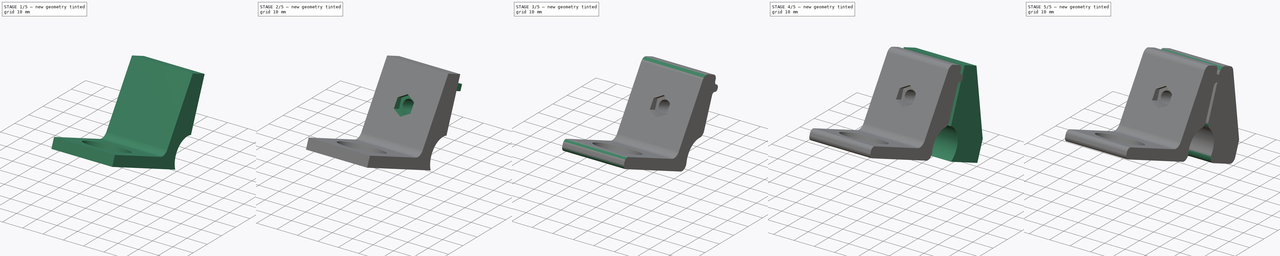
[diagram: build sequence overview — one tinted view per stage of 5, left to right]
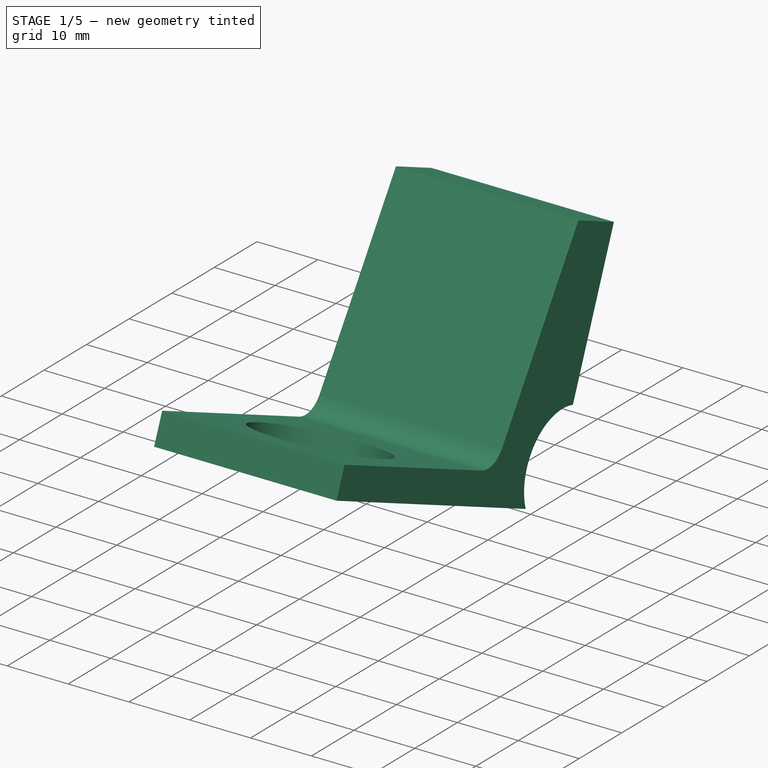
[diagram: stage 1 of 5 — iso view after this stage's code; geometry added in this stage tinted green]
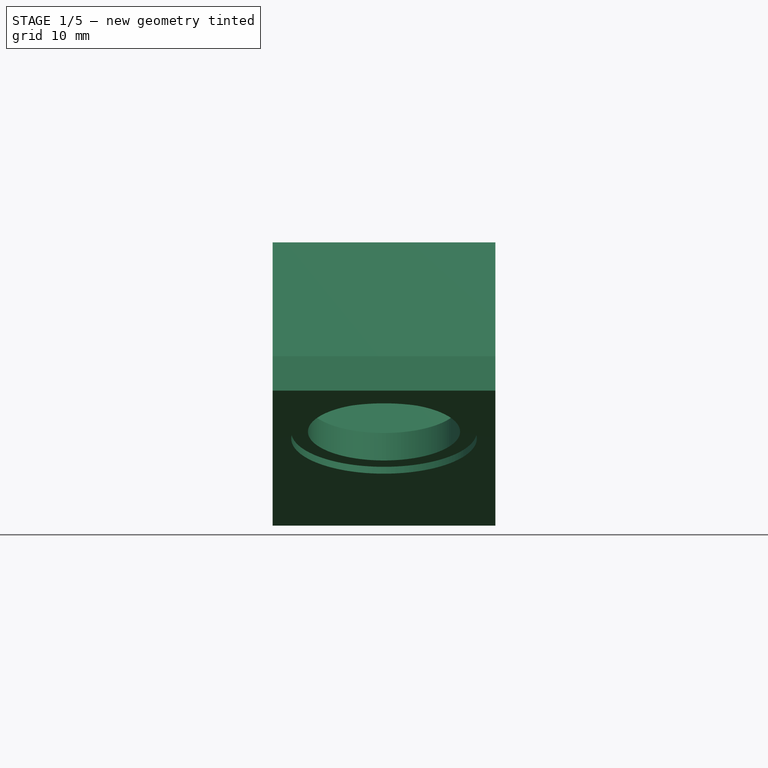
[diagram: stage 1 of 5 — front view after this stage's code; geometry added in this stage tinted green]
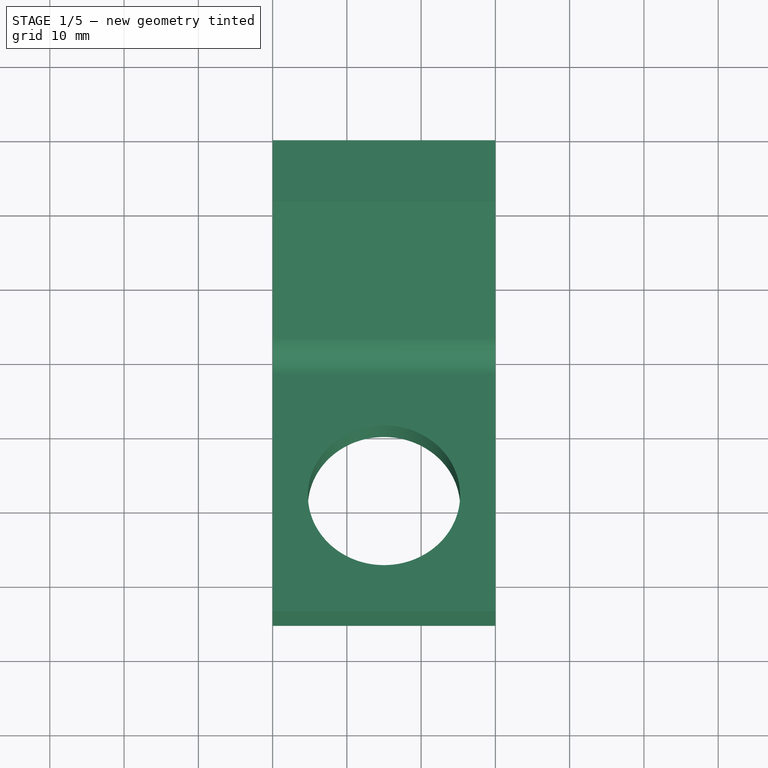
[diagram: stage 1 of 5 — top view after this stage's code; geometry added in this stage tinted green]
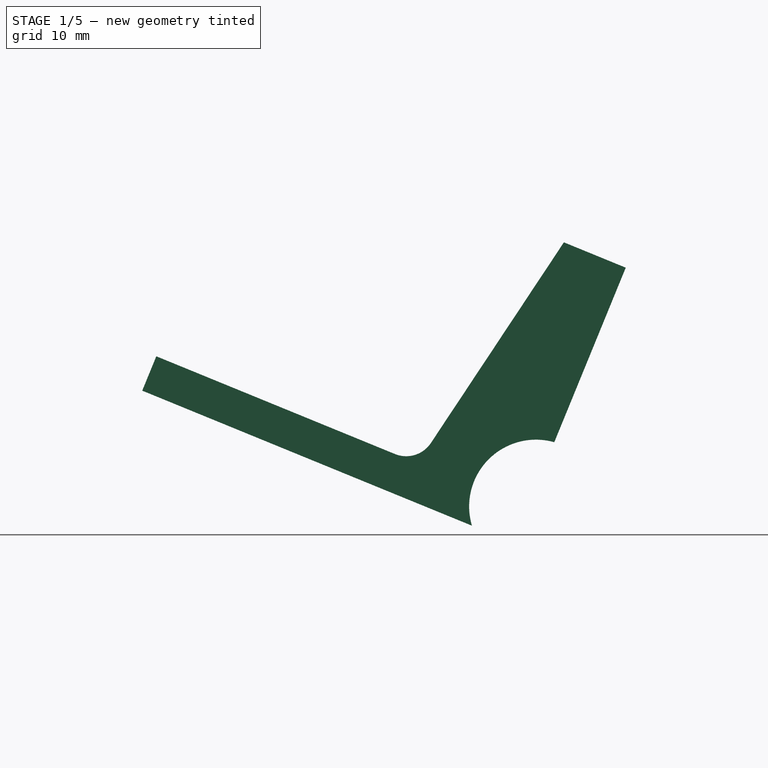
[diagram: stage 1 of 5 — right view after this stage's code; geometry added in this stage tinted green]
FCSTD DOCUMENT  (FreeCAD 0.18R16117 (Git))
Label: rim_to_rod_adapter
License: All rights reserved
LicenseURL: http://en.wikipedia.org/wiki/All_rights_reserved
objects: Sketcher::SketchObject×8, PartDesign::Fillet×5, PartDesign::Pad×3, PartDesign::Hole×3, PartDesign::Plane×3, PartDesign::Pocket×3, PartDesign::Body×2, PartDesign::Chamfer×1, App::Part×1
note: 37 computed .brp shape members not serialized (recipe doc carries the construction recipe); baked Part::Feature solids carry a one-line shape summary decoded from their .brp

FEATURE [Sketcher::SketchObject] Sketch
  MapMode = 5
  Placement = pos=(0,0,0) rot=(0.57735,0.57735,0.57735;2.0944rad)
  Support = -> [YZ_Plane001]
  sketch-geometry (27):
    g0: GeomPoint X=-450 Y=0 Z=0
    g1: ArcOfParabola [constr] CenterX=0 CenterY=0 CenterZ=0 NormalX=0 NormalY=0 NormalZ=1 Focal=450 AngleXU=-3.14159 StartAngle=-600 EndAngle=0
    g2: GeomPoint X=-450 Y=0 Z=0
    g3: LineSegment [constr] StartX=0 StartY=0 StartZ=0 EndX=-450 EndY=0 EndZ=0
    g4: Circle [constr] CenterX=-192.512 CenterY=604.992 CenterZ=0 NormalX=0 NormalY=0 NormalZ=1 AngleXU=0 Radius=9
    g5: GeomPoint X=-200 Y=600 Z=0
    g6: ArcOfParabola [constr] CenterX=2 CenterY=0 CenterZ=0 NormalX=0 NormalY=0 NormalZ=1 Focal=450 AngleXU=-3.14159 StartAngle=-596.588 EndAngle=0
    g7: GeomPoint X=-448 Y=0 Z=0
    g8: LineSegment [constr] StartX=2 StartY=0 StartZ=0 EndX=-448 EndY=0 EndZ=0
    g9: LineSegment [constr] StartX=0 StartY=0 StartZ=0 EndX=2 EndY=0 EndZ=0
    g10: GeomPoint X=-195.732 Y=596.588 Z=0
    g11: GeomPoint X=-195.732 Y=596.588 Z=0
    g12: ArcOfCircle [constr] CenterX=-192.512 CenterY=604.992 CenterZ=0 NormalX=0 NormalY=0 NormalZ=1 AngleXU=0 Radius=9 StartAngle=4.34646 EndAngle=10.0128
    g13: LineSegment [constr] StartX=-450 StartY=0 StartZ=0 EndX=-200.84 EndY=608.403 EndZ=0
    g14: LineSegment StartX=-201.133 StartY=602.41 StartZ=0 EndX=-245.528 EndY=620.591 EndZ=0
    g15: LineSegment [constr] StartX=-188.178 StartY=597.105 StartZ=0 EndX=-174.296 EndY=591.42 EndZ=0
    g16: LineSegment StartX=-245.528 StartY=620.591 StartZ=0 EndX=-243.633 EndY=625.218 EndZ=0
    g17: LineSegment [constr] StartX=-188.75 StartY=640.563 StartZ=0 EndX=-170.242 EndY=632.984 EndZ=0
    g18: LineSegment [constr] StartX=-170.242 StartY=632.984 StartZ=0 EndX=-172.402 EndY=596.047 EndZ=0
    g19: LineSegment [constr] StartX=-172.402 StartY=596.047 StartZ=0 EndX=-174.296 EndY=591.42 EndZ=0
    g20: LineSegment [constr] StartX=-188.75 StartY=640.563 StartZ=0 EndX=-203.909 EndY=603.547 EndZ=0
    g21: LineSegment [constr] StartX=-192.512 StartY=604.992 StartZ=0 EndX=-179.496 EndY=636.774 EndZ=0
    g22: LineSegment StartX=-180.422 StartY=637.153 StartZ=0 EndX=-190.047 EndY=613.648 EndZ=0
    g23: LineSegment StartX=-188.75 StartY=640.563 StartZ=0 EndX=-180.422 EndY=637.153 EndZ=0
    g24: ArcOfCircle CenterX=-192.512 CenterY=604.992 CenterZ=0 NormalX=0 NormalY=0 NormalZ=1 AngleXU=0 Radius=9 StartAngle=1.29344 EndAngle=3.43257
    g25: LineSegment StartX=-188.75 StartY=640.563 StartZ=0 EndX=-208.467 EndY=610.817 EndZ=0
    g26: LineSegment StartX=-243.633 StartY=625.218 StartZ=0 EndX=-208.467 EndY=610.817 EndZ=0
  constraints (70):
    c: PointOnObject(g0,g-1)
    c: InternalAlignment(g2,g1)
    c: Coincident(g2,g3)
    c: Coincident(g1,g3)
    c: Coincident(g2,g0)
    c: Coincident(g1,g-1)
    c: DistanceX(g0,g1) = 450
    c: DistanceY(g1,g1) = 600
    c: Horizontal(g1,g1)
    c: PointOnObject(g5,g4)
    c: Tangent(g1,g4,g5) = -1.5708
    c: Coincident(g5,g1)
    c: Diameter(g4) = 18  'rim_dia'
    c: PointOnObject(g6,g-1)
    c: InternalAlignment(g7,g6)
    c: Coincident(g7,g8)
    c: Coincident(g6,g8)
    c: PointOnObject(g7,g3)
    c: DistanceX(g1,g6) = 2  'thickness'
    c: DistanceX(g0,g7) = 2
    c: Horizontal(g6,g6)
    c: Coincident(g9,g1)
    c: Coincident(g9,g6)
    c: Coincident(g10,g11)
    c: Coincident(g10,g6)
    c: Coincident(g12,g4)
    c: Coincident(g12,g1)
    c: Coincident(g12,g6)
    c: DistanceX(g1,g1) = 200
    c: Distance(g1,g0) = 650
    c: Tangent(g13,g12)
    c: Coincident(g13,g0)
    c: Perpendicular(g13,g14)
    c: PointOnObject(g14,g4)
    c: Tangent(g15,g14)
    c: Perpendicular(g15,g19)
    c: Perpendicular(g14,g16)
    c: Equal(g19,g16)
    c: Coincident(g19,g18)
    c: Coincident(g18,g17)
    c: Coincident(g16,g14)
    c: Distance(g16) = 5
    c: Distance(g15,g14) = 14
    c: Coincident(g19,g15)
    c: Parallel(g17,g14)
    c: PointOnObject(g20,g14)
    c: Perpendicular(g14,g20)
    c: Distance(g20) = 40
    c: Distance(g17) = 20
    c: Perpendicular(g14,g21)
    c: Symmetric(g17,g17,g21)
    c: Distance(g15) = 15
    c: PointOnObject(g13,g4)
    c: PointOnObject(g15,g4)
    c: PointOnObject(g22,g17)
    c: Coincident(g23,g22)
    c: Perpendicular(g14,g22)
    c: Coincident(g24,g14)
    c: Coincident(g24,g4)
    c: Coincident(g24,g22)
    c: Coincident(g25,g26)
    c: Coincident(g23,g25)
    c: Coincident(g23,g17)
    c: Parallel(g26,g14)
    c: Coincident(g16,g26)
    c: Distance(g26) = 38
    c: Distance(g21,g22) = 1
    c: Distance(g25,g13) = 8
    c: Coincident(g21,g24)
    c: Coincident(g20,g23)
FEATURE [PartDesign::Pad] Pad
  Length = 30
  Length2 = 100
  Placement = pos=(0,0,0) rot=(0.57735,0.57735,0.57735;2.0944rad)
  Profile = -> Sketch
  Type = 0
FEATURE [PartDesign::Fillet] Fillet
  Base = -> Pad [Edge17]
  BaseFeature = -> Pad
  Placement = pos=(0,0,0) rot=(0.57735,0.57735,0.57735;2.0944rad)
  Radius = 4
FEATURE [PartDesign::Hole] Hole
  BaseFeature = -> Fillet
  Depth = 25
  DepthType = 1
  Diameter = 20.5
  DrillPoint = 1
  DrillPointAngle = 118
  HoleCutCountersinkAngle = 90
  HoleCutDepth = 1
  HoleCutDiameter = 25
  HoleCutType = 1
  ModelActualThread = false
  Placement = pos=(0,0,0) rot=(0.57735,0.57735,0.57735;2.0944rad)
  Profile = -> Sketch001
  Tapered = false
  TaperedAngle = 90
  ThreadAngle = 0
  ThreadClass = 0
  ThreadCutOffInner = 0
  ThreadCutOffOuter = 0
  ThreadDirection = 0
  ThreadFit = 0
  ThreadPitch = 0
  ThreadSize = 0
  ThreadType = 0
  Threaded = false
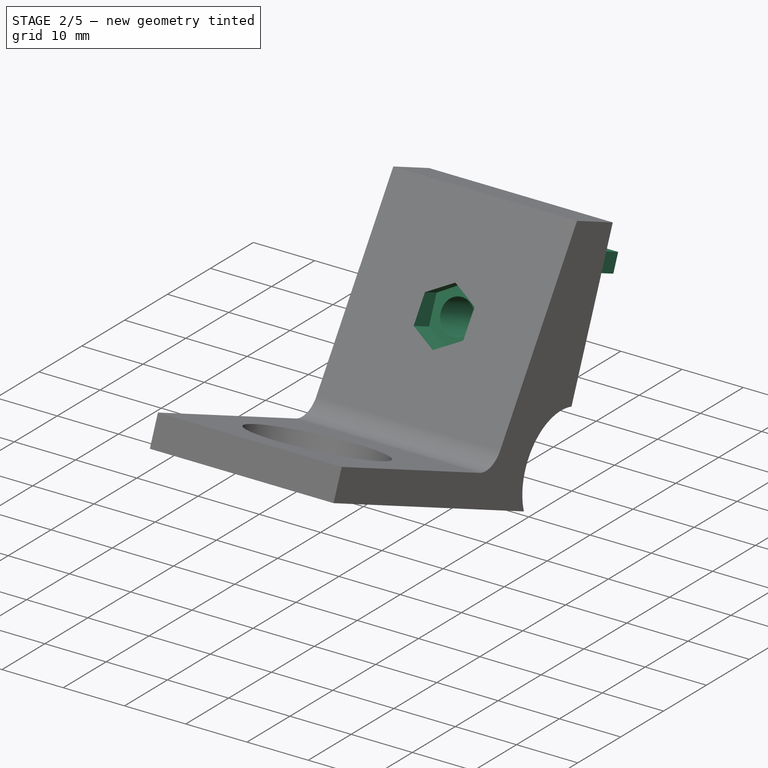
[diagram: stage 2 of 5 — iso view after this stage's code; geometry added in this stage tinted green]
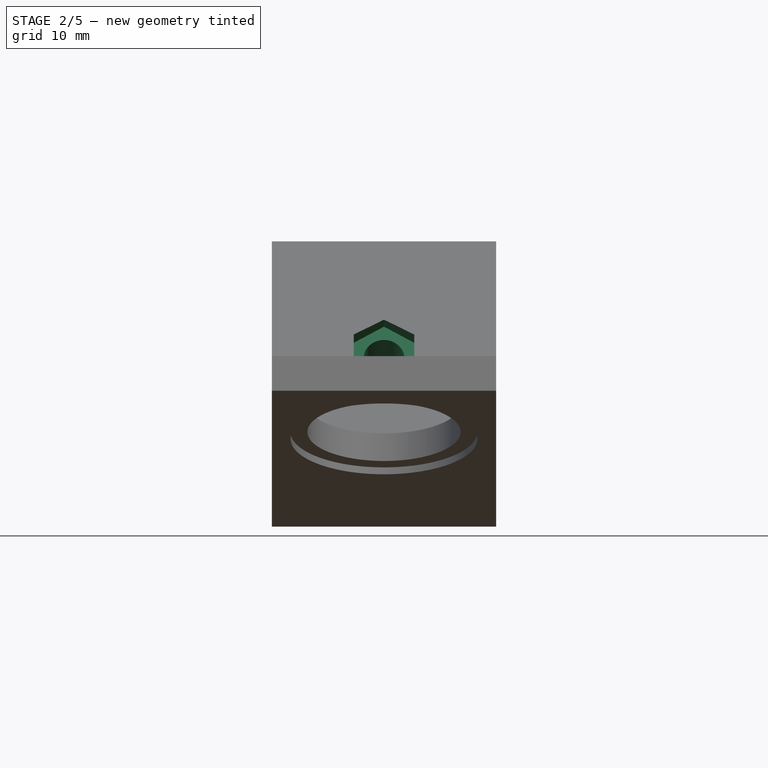
[diagram: stage 2 of 5 — front view after this stage's code; geometry added in this stage tinted green]
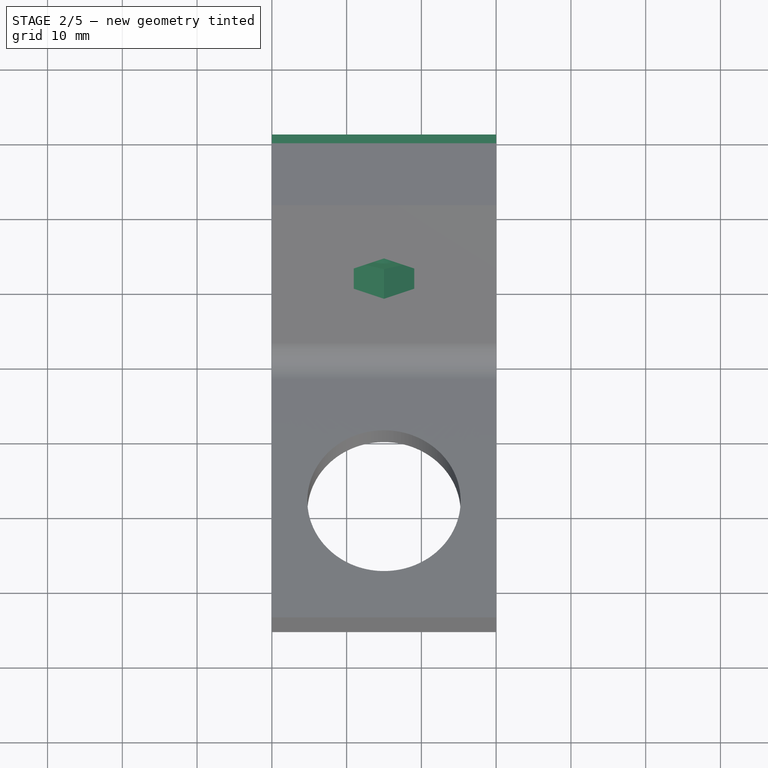
[diagram: stage 2 of 5 — top view after this stage's code; geometry added in this stage tinted green]
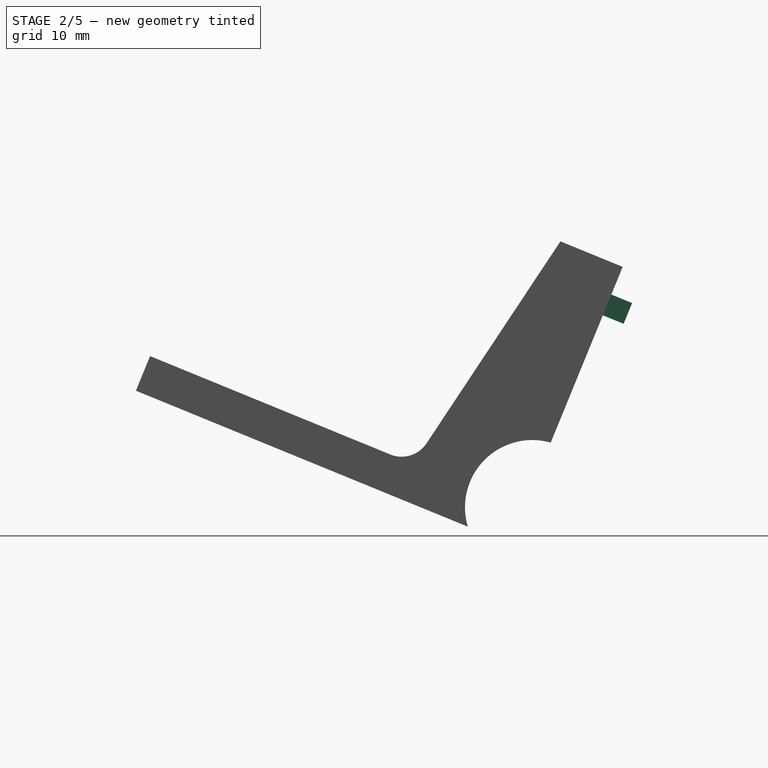
[diagram: stage 2 of 5 — right view after this stage's code; geometry added in this stage tinted green]
FEATURE [PartDesign::Plane] DatumPlane
  AttachmentOffset = pos=(0,0,6) rot=(0,0,1;0rad)
  Length = 731.398
  MapMode = 5
  Placement = pos=(-2.756e-13,-372.412,152.514) rot=(0.638831,0.638831,0.428706;3.9516rad)
  ResizeMode = 0
  Support = -> [Hole]
  Width = 73.4181
FEATURE [Sketcher::SketchObject] Sketch003
  ExternalGeometry = -> [Hole]
  MapMode = 5
  Placement = pos=(-2.796e-13,-377.965,154.788) rot=(0.638831,0.638831,0.428706;3.9516rad)
  Support = -> [Hole]
  sketch-geometry (3):
    g0: Circle CenterX=504.247 CenterY=15 CenterZ=0 NormalX=0 NormalY=0 NormalZ=1 AngleXU=0 Radius=3.36332
    g1: GeomPoint X=495.848 Y=15 Z=0
    g2: LineSegment [constr] StartX=495.848 StartY=15 StartZ=0 EndX=504.247 EndY=15 EndZ=0
  constraints (5):
    c: Symmetric(g-6,g-6,g1)
    c: Coincident(g2,g1)
    c: Coincident(g2,g0)
    c: Perpendicular(g-6,g2)
    c: Distance(g0,g-3) = 17  'screw_dist_from_outer_edge'
FEATURE [PartDesign::Hole] Hole001
  BaseFeature = -> Hole
  Depth = 25
  DepthType = 1
  Diameter = 5.5
  DrillPoint = 1
  DrillPointAngle = 118
  HoleCutCountersinkAngle = 90
  HoleCutDepth = 0
  HoleCutDiameter = 5
  HoleCutType = 0
  ModelActualThread = false
  Placement = pos=(0,0,0) rot=(0.57735,0.57735,0.57735;2.0944rad)
  Profile = -> Sketch003
  Tapered = false
  TaperedAngle = 90
  ThreadAngle = 60
  ThreadClass = 0
  ThreadCutOffInner = 0.0866025
  ThreadCutOffOuter = 0.173205
  ThreadDirection = 0
  ThreadFit = 0
  ThreadPitch = 0.8
  ThreadSize = 6
  ThreadType = 1
  Threaded = false
FEATURE [PartDesign::Plane] DatumPlane002
  AttachmentOffset = pos=(0,0,-9) rot=(0,0,1;0rad)
  Length = 731.398
  MapMode = 11
  Placement = pos=(15,-195.193,624.832) rot=(0.638831,0.638831,0.428706;3.9516rad)
  ResizeMode = 0
  Support = -> [Hole001]
  Width = 73.4181
FEATURE [Sketcher::SketchObject] Sketch005
  MapMode = 5
  Placement = pos=(15,-195.193,624.832) rot=(0.638831,0.638831,0.428706;3.9516rad)
  Support = -> [DatumPlane002]
  sketch-geometry (7):
    g0: LineSegment StartX=2.33827 StartY=-4.05 StartZ=0 EndX=4.67654 EndY=1.99458e-11 EndZ=0
    g1: LineSegment StartX=4.67654 StartY=1.99458e-11 StartZ=0 EndX=2.33827 EndY=4.05 EndZ=0
    g2: LineSegment StartX=2.33827 StartY=4.05 StartZ=0 EndX=-2.33827 EndY=4.05 EndZ=0
    g3: LineSegment StartX=-2.33827 StartY=4.05 StartZ=0 EndX=-4.67654 EndY=1.74598e-11 EndZ=0
    g4: LineSegment StartX=-4.67654 StartY=1.74598e-11 StartZ=0 EndX=-2.33827 EndY=-4.05 EndZ=0
    g5: LineSegment StartX=-2.33827 StartY=-4.05 StartZ=0 EndX=2.33827 EndY=-4.05 EndZ=0
    g6: Circle [constr] CenterX=0 CenterY=0 CenterZ=0 NormalX=0 NormalY=0 NormalZ=1 AngleXU=0 Radius=4.67654
  constraints (16):
    c: Coincident(g0,g1)
    c: Coincident(g1,g2)
    c: Coincident(g2,g3)
    c: Coincident(g3,g4)
    c: Coincident(g4,g5)
    c: Coincident(g5,g0)
    c: Equal(g0, g1-g5) x5
    c: PointOnObject(g0,g6)
    c: PointOnObject(g1,g6)
    c: PointOnObject(g2,g6)
    c: PointOnObject(g3,g6)
    c: PointOnObject(g4,g6)
    c: PointOnObject(g5,g6)
    c: Coincident(g6,g-1)
    c: Horizontal(g2)
    c: Distance(g2,g4) = 8.1
FEATURE [PartDesign::Pocket] Pocket001
  BaseFeature = -> Hole001
  Length = 5
  Length2 = 100
  Placement = pos=(0,0,0) rot=(0.57735,0.57735,0.57735;2.0944rad)
  Profile = -> Sketch005
  Type = 0
FEATURE [Sketcher::SketchObject] Sketch006
  ExternalGeometry = -> [Pocket001]
  MapMode = 5
  Placement = pos=(-3.827e-13,-377.965,154.788) rot=(0.638831,0.638831,0.428706;3.9516rad)
  Support = -> [Pocket001]
  sketch-geometry (5):
    g0: LineSegment StartX=517.247 StartY=30 StartZ=0 EndX=517.247 EndY=-7.034e-13 EndZ=0
    g1: LineSegment StartX=517.247 StartY=-7.034e-13 StartZ=0 EndX=514.247 EndY=-7.034e-13 EndZ=0
    g2: LineSegment StartX=514.247 StartY=-7.034e-13 StartZ=0 EndX=514.247 EndY=30 EndZ=0
    g3: LineSegment StartX=514.247 StartY=30 StartZ=0 EndX=517.247 EndY=30 EndZ=0
    g4: LineSegment StartX=517.247 StartY=30 StartZ=0 EndX=517.247 EndY=-7.034e-13 EndZ=0
  constraints (10):
    c: Coincident(g1,g2)
    c: Coincident(g2,g3)
    c: Coincident(g3,g4)
    c: Coincident(g4,g1)
    c: Horizontal(g1)
    c: Horizontal(g3)
    c: Vertical(g2)
    c: Coincident(g1,g0)
    c: Coincident(g0,g3)
    c: DistanceX(g3,g3) = 3
FEATURE [PartDesign::Pad] Pad002
  BaseFeature = -> Pocket001
  Length = 3
  Length2 = 100
  Placement = pos=(0,0,0) rot=(0.57735,0.57735,0.57735;2.0944rad)
  Profile = -> Sketch006
  Type = 0
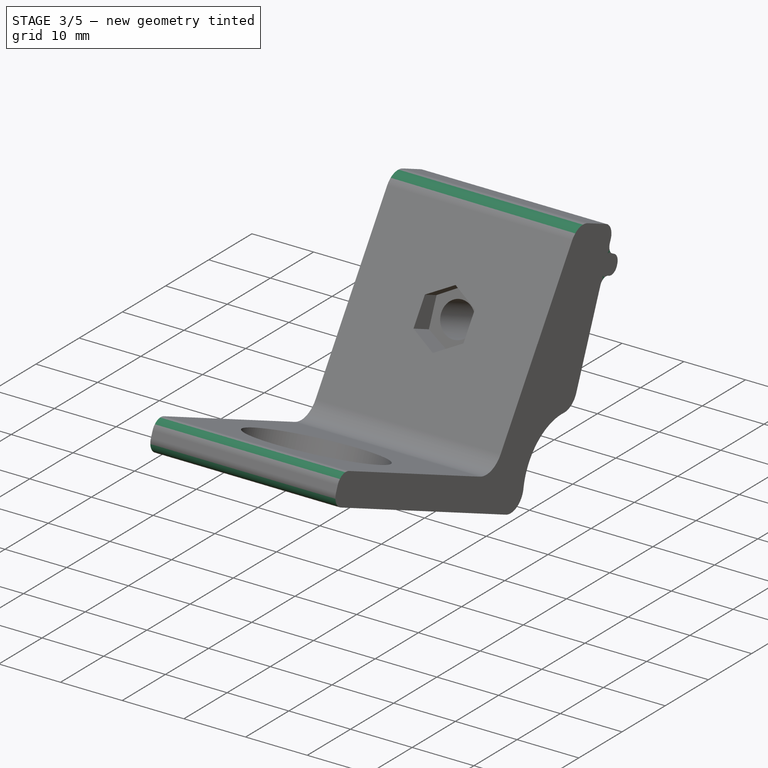
[diagram: stage 3 of 5 — iso view after this stage's code; geometry added in this stage tinted green]
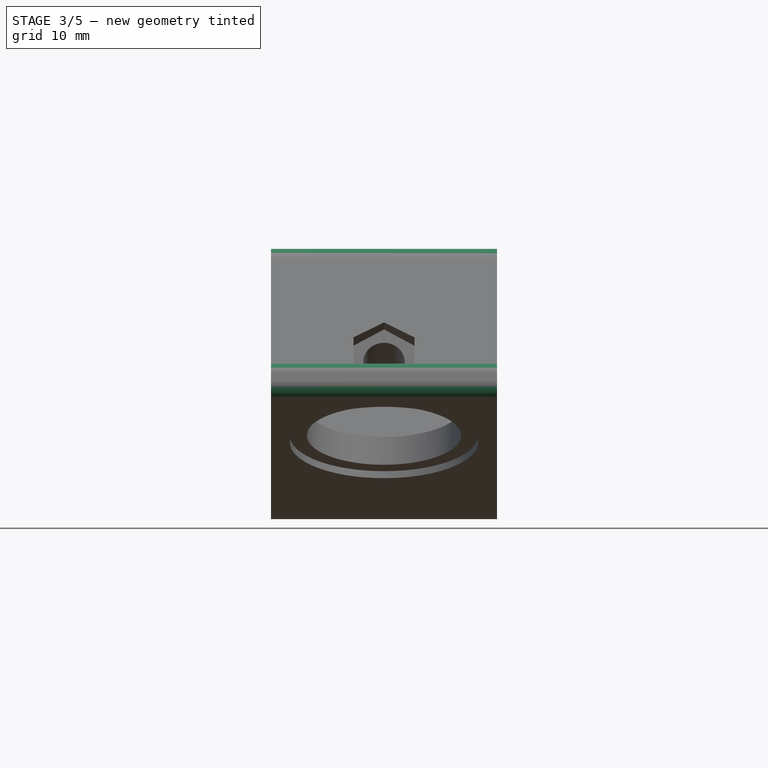
[diagram: stage 3 of 5 — front view after this stage's code; geometry added in this stage tinted green]
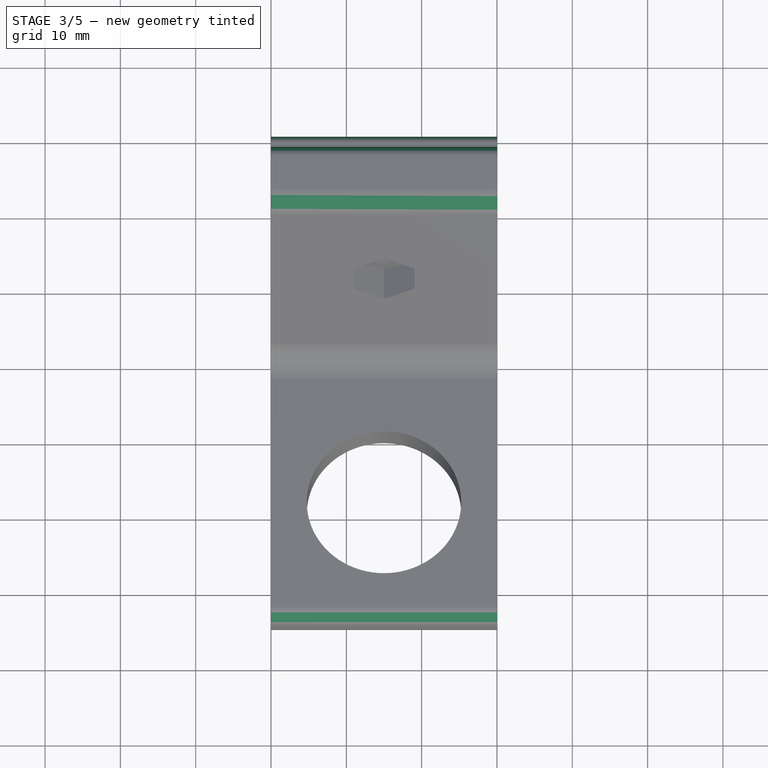
[diagram: stage 3 of 5 — top view after this stage's code; geometry added in this stage tinted green]
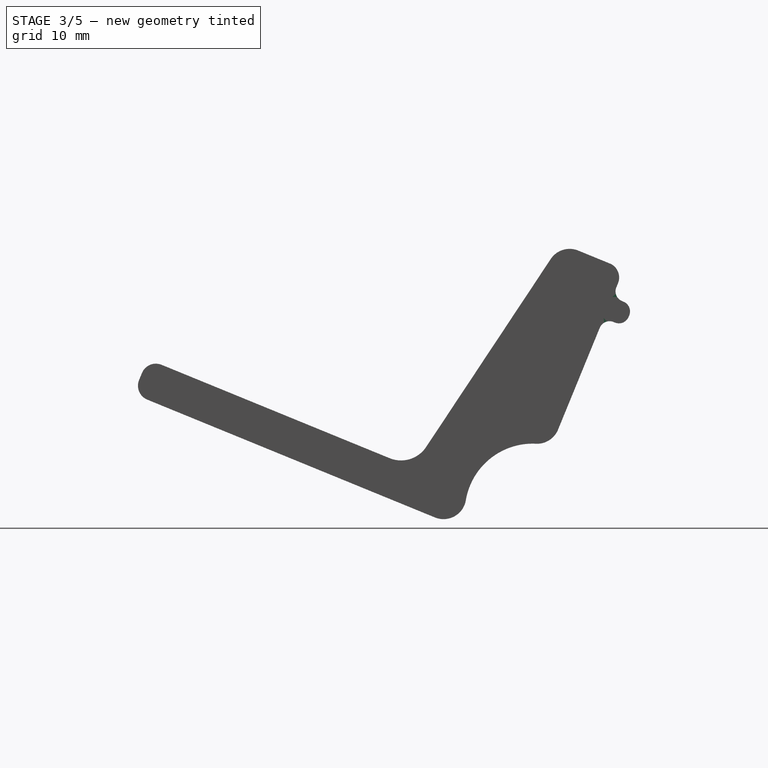
[diagram: stage 3 of 5 — right view after this stage's code; geometry added in this stage tinted green]
FEATURE [PartDesign::Fillet] Fillet002
  Base = -> Pad002 [Edge43,Edge63,Edge62,Edge39]
  BaseFeature = -> Pad002
  Placement = pos=(0,0,0) rot=(0.57735,0.57735,0.57735;2.0944rad)
  Radius = 1.4
FEATURE [PartDesign::Body] Body001
  Group = -> [Pad001,DatumPlane001,Sketch004,Hole002,Pocket,Sketch007,Pocket002,Chamfer,Fillet003]
  Origin = -> Origin002
  Tip = -> Fillet003
FEATURE [PartDesign::Fillet] Fillet004
  Base = -> Fillet002 [Edge36,Edge42,Edge23]
  BaseFeature = -> Fillet002
  Placement = pos=(0,0,0) rot=(0.57735,0.57735,0.57735;2.0944rad)
  Radius = 3
FEATURE [PartDesign::Fillet] Fillet005
  Base = -> Fillet004 [Edge40,Edge43,Edge17]
  BaseFeature = -> Fillet004
  Placement = pos=(0,0,0) rot=(0.57735,0.57735,0.57735;2.0944rad)
  Radius = 2
FEATURE [PartDesign::Body] Body  label="DishWithRim"
  Group = -> [Sketch,Pad,Fillet,Sketch001,Sketch002,Hole,DatumPlane,Sketch003,Hole001,DatumPlane002,Sketch005,Pocket001,Sketch006,Pad002,Fillet002,Fillet004,Fillet005]
  Origin = -> Origin001
  Tip = -> Fillet005
FEATURE [App::Part] Part
  Group = -> [Body,Body001]
  Origin = -> Origin
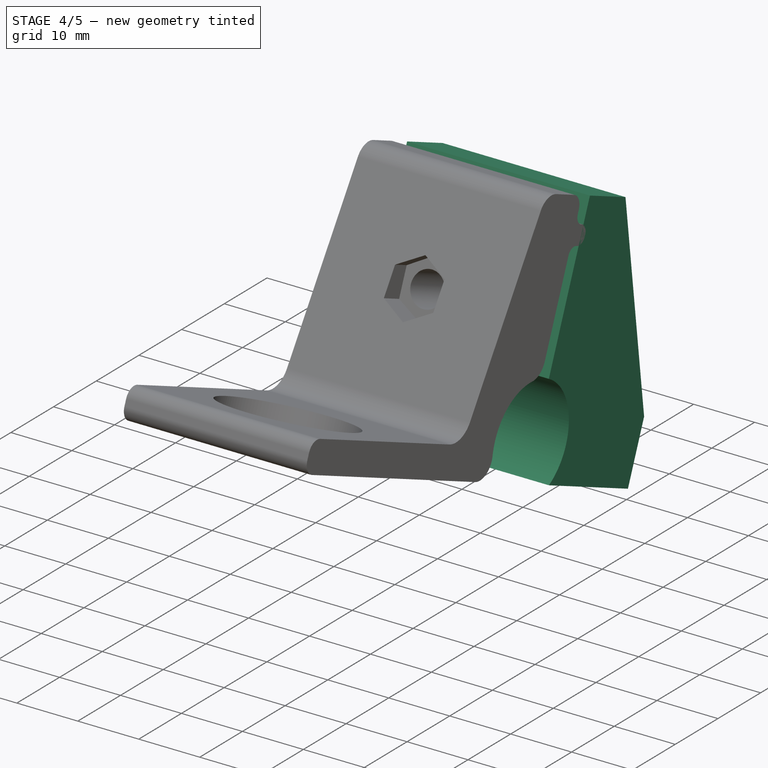
[diagram: stage 4 of 5 — iso view after this stage's code; geometry added in this stage tinted green]
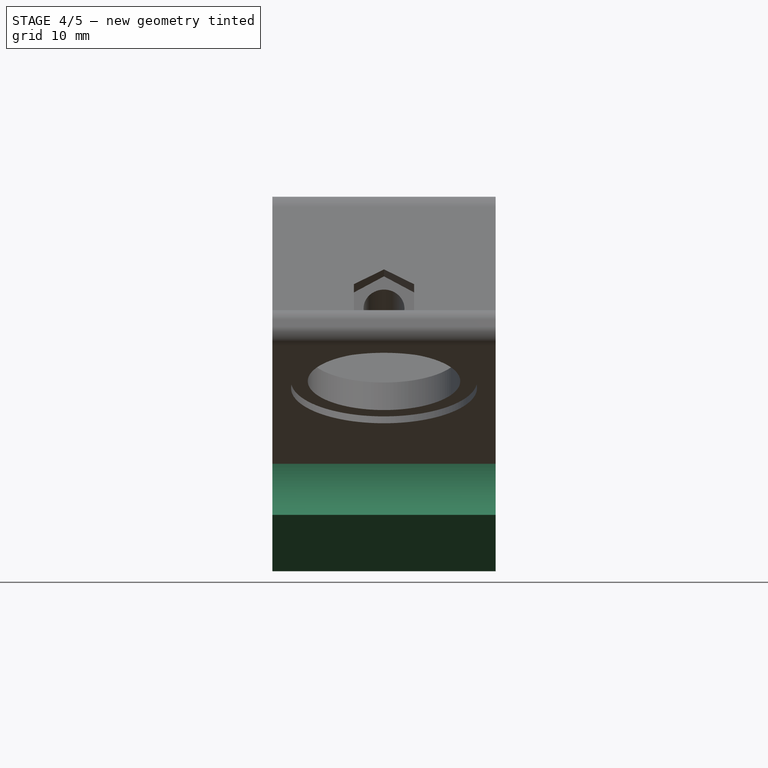
[diagram: stage 4 of 5 — front view after this stage's code; geometry added in this stage tinted green]
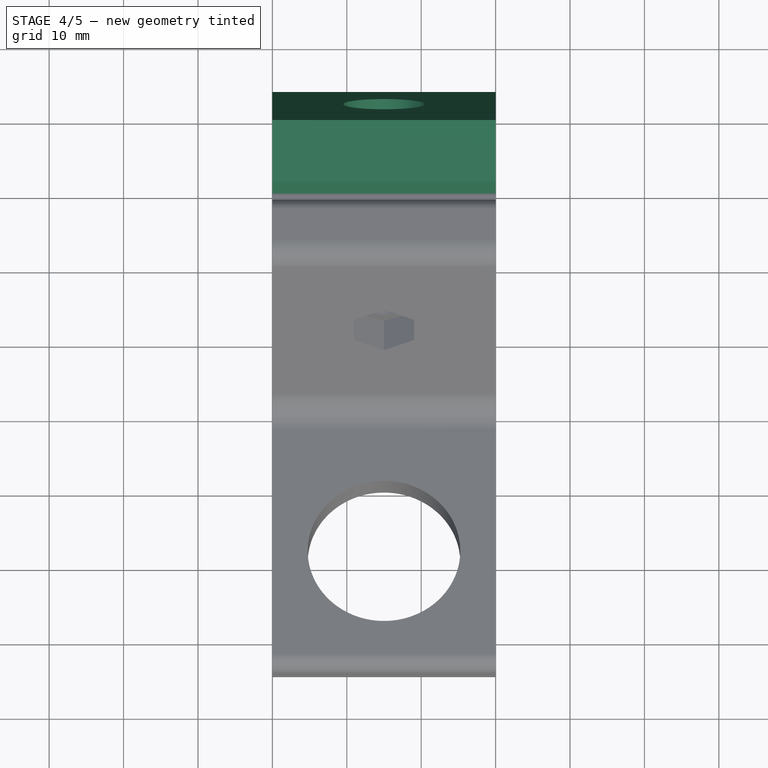
[diagram: stage 4 of 5 — top view after this stage's code; geometry added in this stage tinted green]
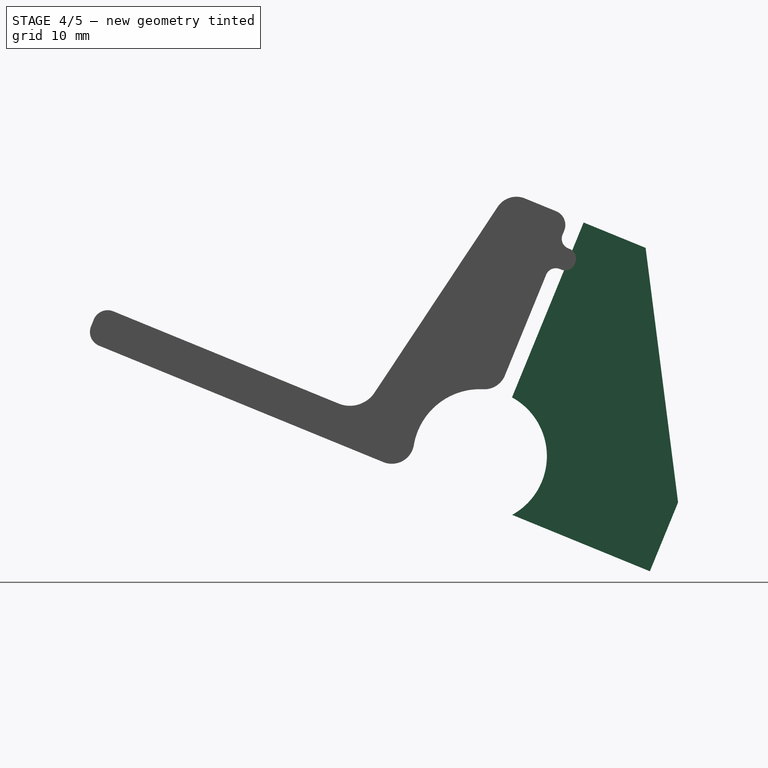
[diagram: stage 4 of 5 — right view after this stage's code; geometry added in this stage tinted green]
FEATURE [Sketcher::SketchObject] Sketch001
  ExternalGeometry = -> [Fillet]
  MapMode = 5
  Placement = pos=(-9.21e-14,182.384,445.348) rot=(0.700356,0.700356,-0.137853;2.86761rad)
  Support = -> [Fillet]
  sketch-geometry (3):
    g0: Circle CenterX=-445.405 CenterY=15 CenterZ=0 NormalX=0 NormalY=0 NormalZ=1 AngleXU=0 Radius=2.9091
    g1: GeomPoint X=-462.405 Y=15 Z=0
    g2: LineSegment [constr] StartX=-462.405 StartY=15 StartZ=0 EndX=-445.405 EndY=15 EndZ=0
  constraints (5):
    c: Symmetric(g-3,g-3,g1)
    c: Perpendicular(g-3,g2)
    c: Coincident(g0,g2)
    c: Coincident(g2,g1)
    c: Distance(g2) = 17
FEATURE [Sketcher::SketchObject] Sketch002
  ExternalGeometry = -> [Sketch]
  MapMode = 5
  Placement = pos=(0,0,0) rot=(0.57735,0.57735,0.57735;2.0944rad)
  Support = -> [YZ_Plane001]
  sketch-geometry (12):
    g0: LineSegment [constr] StartX=-192.512 StartY=604.992 StartZ=0 EndX=-179.496 EndY=636.774 EndZ=0
    g1: LineSegment StartX=-188.196 StartY=612.89 StartZ=0 EndX=-178.571 EndY=636.395 EndZ=0
    g2: Circle [constr] CenterX=-192.512 CenterY=604.992 CenterZ=0 NormalX=0 NormalY=0 NormalZ=1 AngleXU=0 Radius=9
    g3: GeomPoint X=-179.496 Y=636.774 Z=0
    g4: LineSegment [constr] StartX=-179.496 StartY=636.774 StartZ=0 EndX=-178.571 EndY=636.395 EndZ=0
    g5: ArcOfCircle CenterX=-192.512 CenterY=604.992 CenterZ=0 NormalX=0 NormalY=0 NormalZ=1 AngleXU=0 Radius=9 StartAngle=5.21482 EndAngle=7.35395
    g6: LineSegment StartX=-188.178 StartY=597.105 StartZ=0 EndX=-169.669 EndY=589.525 EndZ=0
    g7: LineSegment StartX=-165.88 StartY=598.779 StartZ=0 EndX=-170.242 EndY=632.984 EndZ=0
    g8: LineSegment StartX=-170.242 StartY=632.984 StartZ=0 EndX=-178.571 EndY=636.395 EndZ=0
    g9: LineSegment StartX=-169.669 StartY=589.525 StartZ=0 EndX=-165.88 EndY=598.779 EndZ=0
    g10: LineSegment [constr] StartX=-188.75 StartY=640.563 StartZ=0 EndX=-203.909 EndY=603.547 EndZ=0
    g11: LineSegment [constr] StartX=-170.242 StartY=632.984 StartZ=0 EndX=-185.401 EndY=595.968 EndZ=0
  constraints (33):
    c: Coincident(g2,g0)
    c: PointOnObject(g1,g2)
    c: Coincident(g4,g1)
    c: Coincident(g3,g4)
    c: Perpendicular(g1,g4)
    c: Distance(g4) = 1
    c: Coincident(g5,g0)
    c: Coincident(g5,g1)
    c: Coincident(g6,g5)
    c: Coincident(g1,g8)
    c: Coincident(g8,g7)
    c: Perpendicular(g1,g8)
    c: Coincident(g9,g6)
    c: Coincident(g9,g7)
    c: Perpendicular(g6,g9)
    c: Distance(g6) = 20
    c: Distance(g9) = 10
    c: Coincident(g0,g3)
    c: Equal(g-4,g2)
    c: PointOnObject(g-4,g2)
    c: PointOnObject(g-4,g2)
    c: Parallel(g6,g-5)
    c: Parallel(g1,g-3)
    c: Equal(g-3,g1)
    c: Parallel(g0,g-3)
    c: Distance(g8) = 9
    c: PointOnObject(g10,g-5)
    c: Coincident(g10,g-6)
    c: Perpendicular(g-5,g10)
    c: PointOnObject(g11,g6)
    c: Coincident(g11,g7)
    c: Perpendicular(g6,g11)
    c: Equal(g11,g10)
FEATURE [PartDesign::Pad] Pad001
  Length = 30
  Length2 = 100
  Placement = pos=(0,0,0) rot=(0.57735,0.57735,0.57735;2.0944rad)
  Profile = -> Sketch002
  Type = 0
FEATURE [PartDesign::Plane] DatumPlane001
  AttachmentOffset = pos=(0,0,10) rot=(0,0,1;0rad)
  Length = 704.972
  MapMode = 5
  Placement = pos=(-2.208e-13,-366.86,150.24) rot=(0.638831,0.638831,0.428706;3.9516rad)
  ResizeMode = 0
  Support = -> [Pad001]
  Width = 72.7946
FEATURE [Sketcher::SketchObject] Sketch004
  ExternalGeometry = -> [Pad001]
  MapMode = 5
  Placement = pos=(-2.208e-13,-366.86,150.24) rot=(0.638831,0.638831,0.428706;3.9516rad)
  Support = -> [DatumPlane001]
  expr: Constraints[4] = Sketch003.Constraints.screw_dist_from_outer_edge
  sketch-geometry (4):
    g0: Circle CenterX=-506.968 CenterY=13.1307 CenterZ=0 NormalX=0 NormalY=0 NormalZ=1 AngleXU=0 Radius=6.50117
    g1: Circle CenterX=504.247 CenterY=15 CenterZ=0 NormalX=0 NormalY=0 NormalZ=1 AngleXU=0 Radius=5.48126
    g2: GeomPoint X=521.247 Y=15 Z=0
    g3: LineSegment [constr] StartX=521.247 StartY=15 StartZ=0 EndX=504.247 EndY=15 EndZ=0
  constraints (5):
    c: Symmetric(g-3,g-3,g2)
    c: Coincident(g3,g2)
    c: Coincident(g3,g1)
    c: Perpendicular(g-3,g3)
    c: Distance(g3) = 17
FEATURE [PartDesign::Hole] Hole002
  BaseFeature = -> Pad001
  Depth = 25
  DepthType = 1
  Diameter = 5.5
  DrillPoint = 1
  DrillPointAngle = 118
  HoleCutCountersinkAngle = 90
  HoleCutDepth = 0
  HoleCutDiameter = 10
  HoleCutType = 2
  ModelActualThread = false
  Placement = pos=(0,0,0) rot=(0.57735,0.57735,0.57735;2.0944rad)
  Profile = -> Sketch004
  Tapered = false
  TaperedAngle = 90
  ThreadAngle = 0
  ThreadClass = 0
  ThreadCutOffInner = 0
  ThreadCutOffOuter = 0
  ThreadDirection = 0
  ThreadFit = 0
  ThreadPitch = 0
  ThreadSize = 6
  ThreadType = 1
  Threaded = false
FEATURE [PartDesign::Pocket] Pocket
  BaseFeature = -> Hole002
  Length = 11
  Length2 = 100
  Placement = pos=(0,0,0) rot=(0.57735,0.57735,0.57735;2.0944rad)
  Profile = -> Sketch004
  Reversed = true
  Type = 1
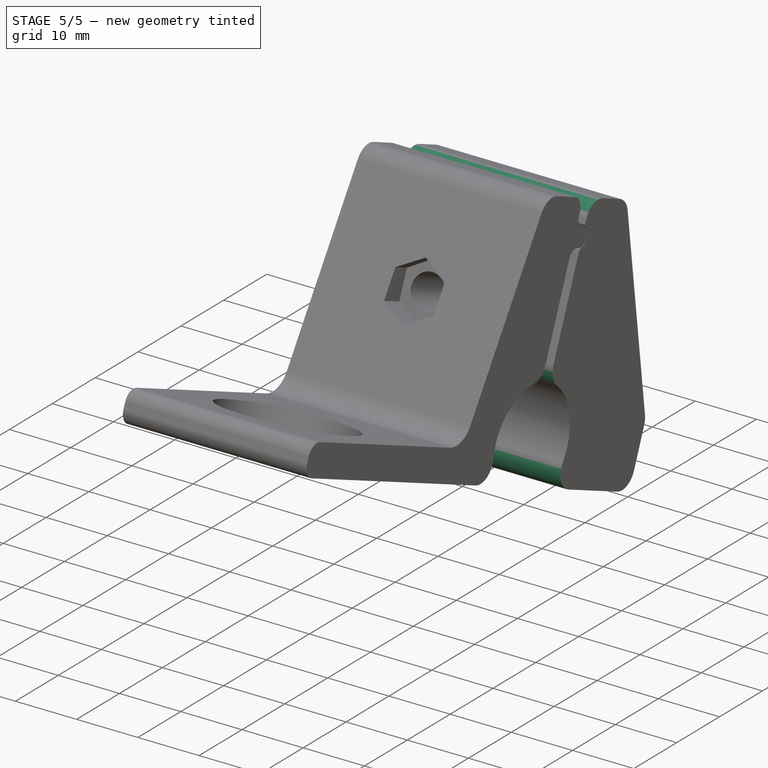
[diagram: stage 5 of 5 — iso view after this stage's code; geometry added in this stage tinted green]
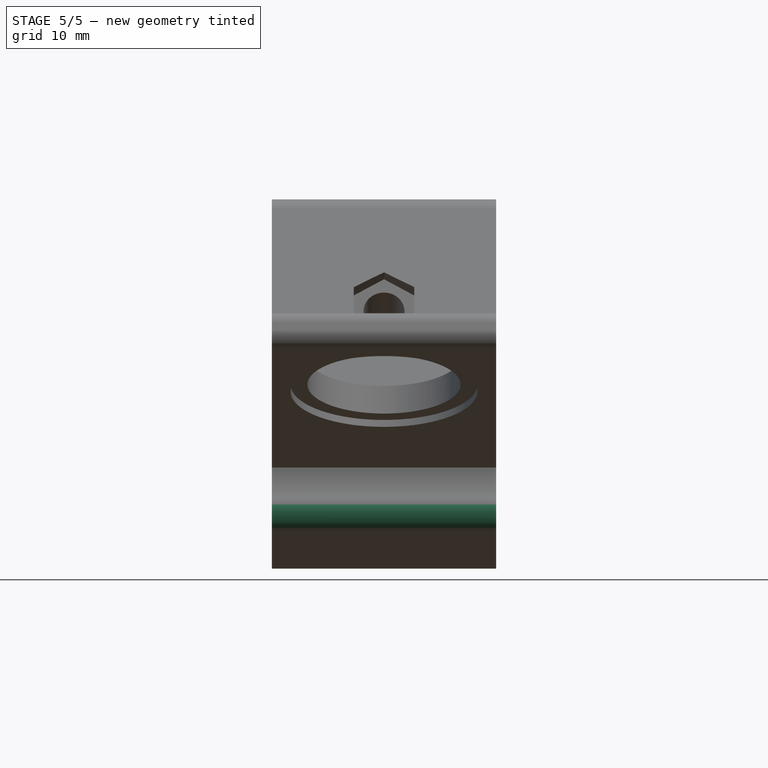
[diagram: stage 5 of 5 — front view after this stage's code; geometry added in this stage tinted green]
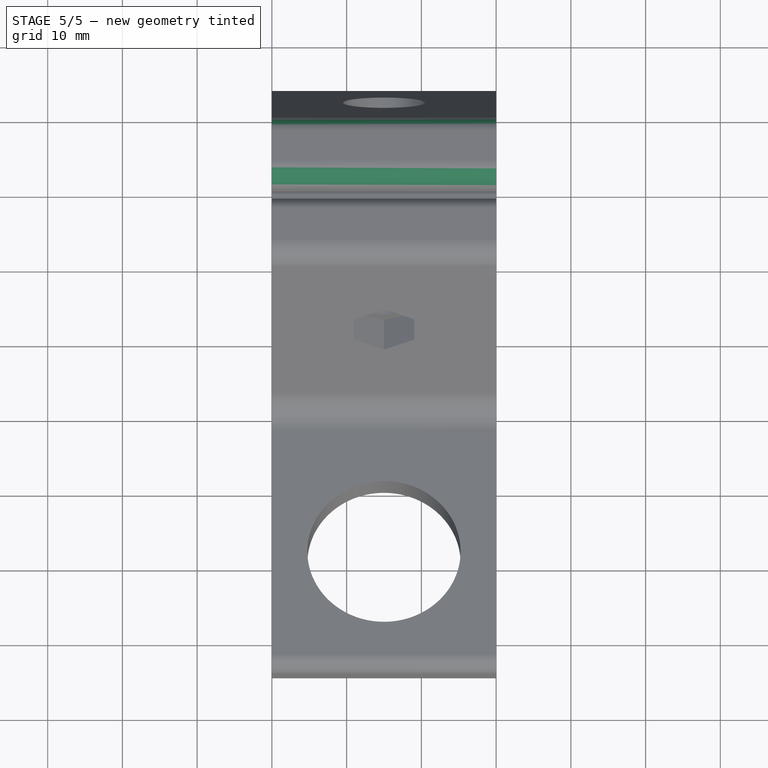
[diagram: stage 5 of 5 — top view after this stage's code; geometry added in this stage tinted green]
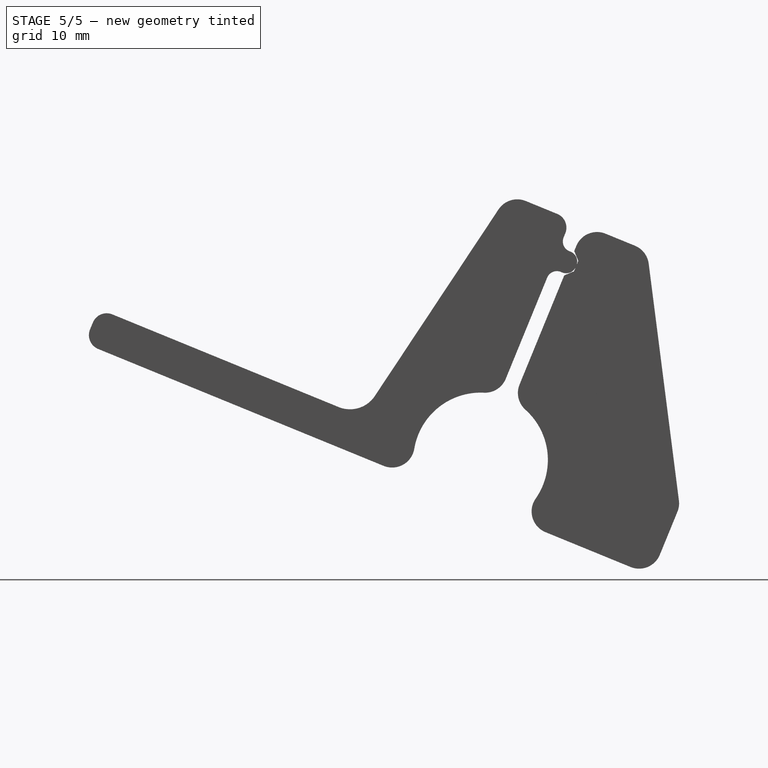
[diagram: stage 5 of 5 — right view after this stage's code; geometry added in this stage tinted green]
FEATURE [Sketcher::SketchObject] Sketch007
  ExternalGeometry = -> [Pocket]
  MapMode = 5
  Placement = pos=(-3.295e-13,-376.114,154.03) rot=(0.486763,0.486763,-0.725344;1.88653rad)
  Support = -> [Pocket]
  sketch-geometry (4):
    g0: LineSegment StartX=-517.497 StartY=30 StartZ=0 EndX=-513.997 EndY=30 EndZ=0
    g1: LineSegment StartX=-513.997 StartY=30 StartZ=0 EndX=-513.997 EndY=-6.857e-13 EndZ=0
    g2: LineSegment StartX=-513.997 StartY=-6.857e-13 StartZ=0 EndX=-517.497 EndY=-6.857e-13 EndZ=0
    g3: LineSegment StartX=-517.497 StartY=-6.857e-13 StartZ=0 EndX=-517.497 EndY=30 EndZ=0
  constraints (12):
    c: Coincident(g0,g1)
    c: Coincident(g1,g2)
    c: Coincident(g2,g3)
    c: Coincident(g3,g0)
    c: Horizontal(g0)
    c: Horizontal(g2)
    c: Vertical(g1)
    c: Vertical(g3)
    c: Equal(g3,g-3)
    c: Horizontal(g0,g-3)
    c: DistanceX(g-3,g0) = 3.75
    c: DistanceX(g0,g0) = 3.5
FEATURE [PartDesign::Pocket] Pocket002
  BaseFeature = -> Pocket
  Length = 1
  Length2 = 100
  Placement = pos=(0,0,0) rot=(0.57735,0.57735,0.57735;2.0944rad)
  Profile = -> Sketch007
  Type = 0
FEATURE [PartDesign::Chamfer] Chamfer
  Base = -> Pocket002 [Edge31,Edge32]
  BaseFeature = -> Pocket002
  Placement = pos=(0,0,0) rot=(0.57735,0.57735,0.57735;2.0944rad)
  Size = 0.99
FEATURE [PartDesign::Fillet] Fillet003
  Base = -> Chamfer [Edge36,Edge31,Edge26,Edge22,Edge18,Edge34]
  BaseFeature = -> Chamfer
  Placement = pos=(0,0,0) rot=(0.57735,0.57735,0.57735;2.0944rad)
  Radius = 3
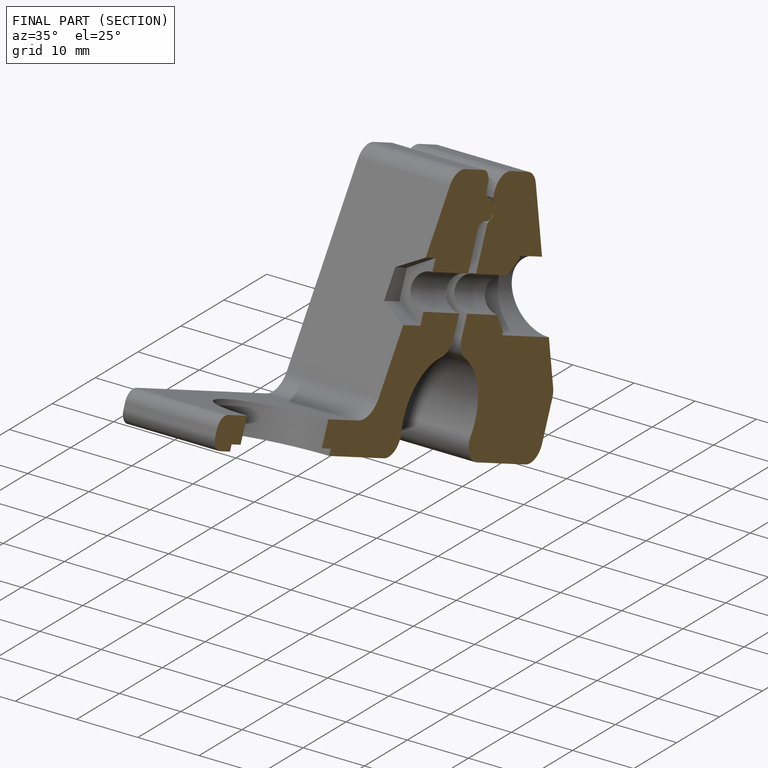
[diagram: finished part — half-section view (interior)]
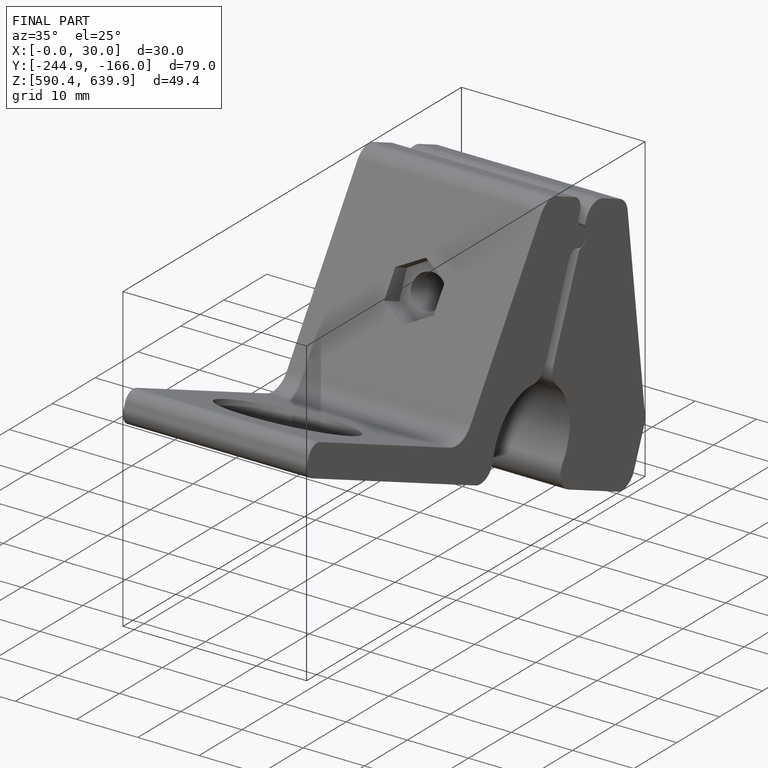
[diagram: finished part — iso view with bounding-box wireframe]
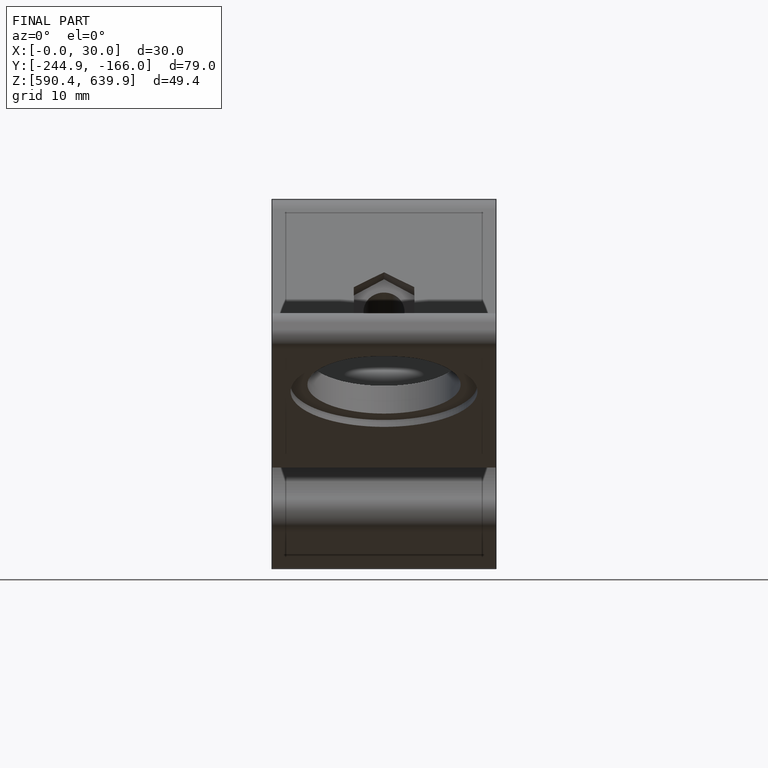
[diagram: finished part — front view with bounding-box wireframe]
